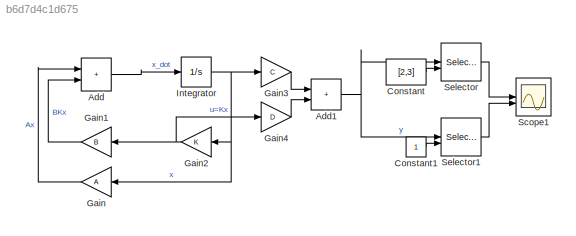
MODEL slx_b6d7d4c1d675
KIND model
CONFIG AbsTol = auto
CONFIG EnableMultiTasking = off
CONFIG FixedStep = auto
CONFIG MaxStep = auto
CONFIG MinStep = auto
CONFIG RelTol = 1e-3
CONFIG SampleTimeConstraint = Unconstrained
CONFIG SolverName = VariableStepAuto
CONFIG StartTime = 0.0
CONFIG StopTime = 100
BLOCK [Sum] Add
  IconShape = rectangular
BLOCK [Sum] Add1
  IconShape = rectangular
BLOCK [Constant] Constant
  Value = [2,3]
BLOCK [Constant] Constant1
BLOCK [Gain] Gain
  Gain = A
  Multiplication = Matrix(K*u)
BLOCK [Gain] Gain1
  Gain = B
  Multiplication = Matrix(K*u)
BLOCK [Gain] Gain2
  Gain = K
  Multiplication = Matrix(K*u)
BLOCK [Gain] Gain3
  Gain = C
  Multiplication = Matrix(K*u)
BLOCK [Gain] Gain4
  Gain = D
  Multiplication = Matrix(K*u)
BLOCK [Integrator] Integrator
  InitialCondition = init_state
BLOCK [Scope] Scope1
  Floating = off
  NumInputPorts = 2
  ScopeSpecificationString = Simulink.scopes.TimeScopeBlockCfg('CurrentConfiguration', extmgr.ConfigurationSet(extmgr.Configuration('Core','General UI',true),extmgr.Configuration('Core','Source UI',true),extmgr.Configuration('Sources','WiredSimulink',true,'DataLoggingVariableName','ScopeData1'),extmgr.Configuration('Visuals','Time Domain',true,'SerializedDisplays',{struct('MinYLimReal','-0.6553','MaxYLimReal','0.66169','YLabe...<+2104ch>
BLOCK [Selector] Selector
  IndexOptions = Index vector (port)
  Indices = [1 3]
  InputPortWidth = 3
  OutputSizes = 1
BLOCK [Selector] Selector1
  IndexOptions = Index vector (port)
  Indices = [1 3]
  InputPortWidth = 3
  OutputSizes = 1
NET Add1:1 -> Selector1:1, Selector:1
LINE Add:1 -> Integrator:1
LINE Constant1:1 -> Selector1:2
LINE Constant:1 -> Selector:2
LINE Gain1:1 -> Add:2
NET Gain2:1 -> Gain1:1, Gain4:1
LINE Gain3:1 -> Add1:1
LINE Gain4:1 -> Add1:2
LINE Gain:1 -> Add:1
NET Integrator:1 -> Gain2:1, Gain3:1, Gain:1
LINE Selector1:1 -> Scope1:2
LINE Selector:1 -> Scope1:1
note: NET lines group one-source signal fan-out (src -> all destinations, sorted); 1:1 wires keep LINE
